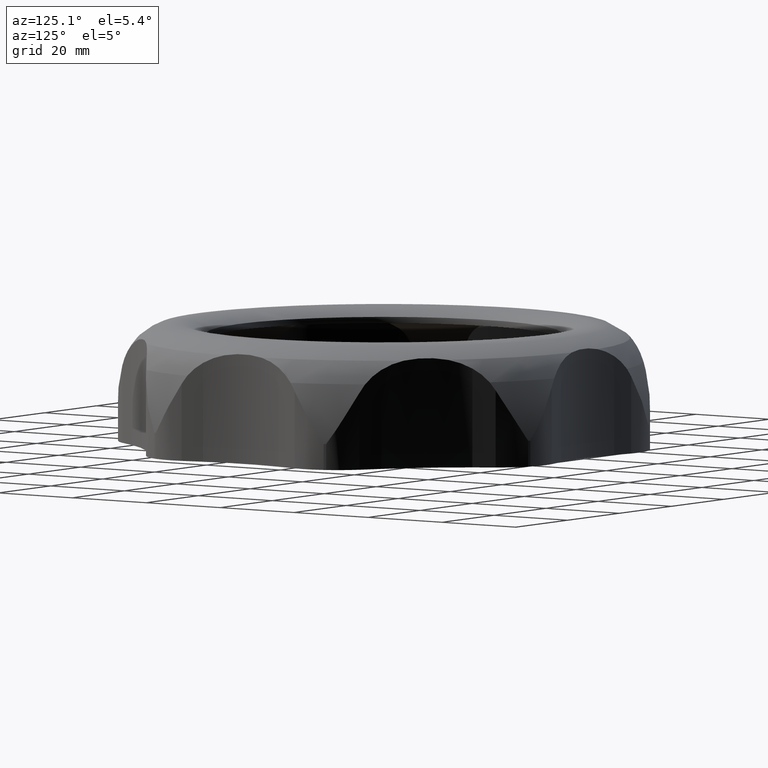
[diagram: clean part render]
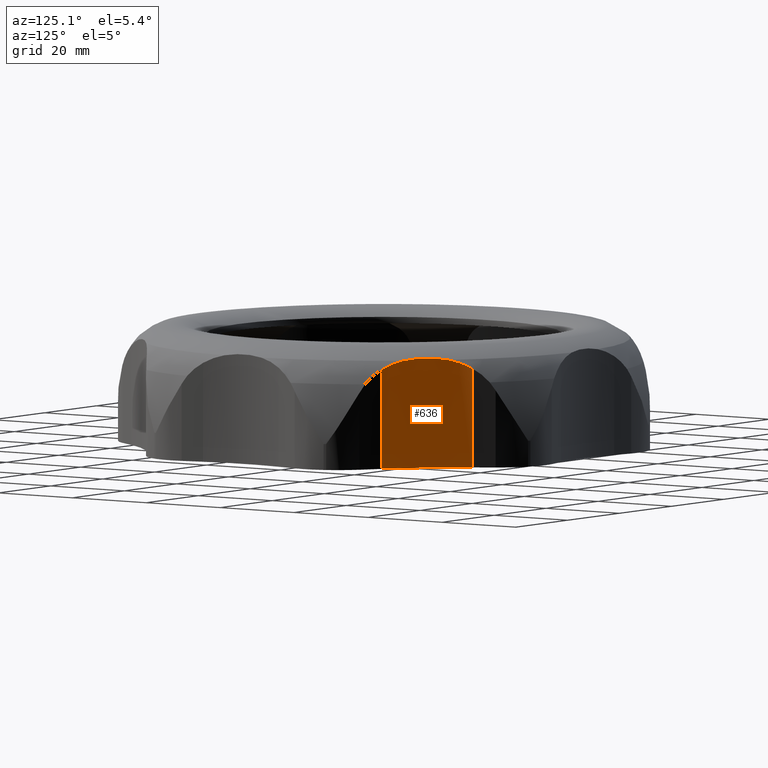
[diagram: same view with one face highlighted and labeled with its STEP entity id]
A machine part, auxiliary view. The second image highlights one B-rep face of the part: STEP entity #636.
In plain terms, the highlighted cylindrical surface (partial cylindrical patch) has radius 49.5 mm, axis along (0, 0, -1).
Its self-contained STEP definition (entity closure, byte-faithful):
#636 = ADVANCED_FACE( '', ( #3509 ), #3510, .F. );
#3509 = FACE_OUTER_BOUND( '', #8233, .T. );
#3510 = CYLINDRICAL_SURFACE( '', #8234, 49.5000000000000 );
#8233 = EDGE_LOOP( '', ( #20145, #20146, #20147, #20148, #20149, #20150 ) );
#8234 = AXIS2_PLACEMENT_3D( '', #20151, #20152, #20153 );
#20145 = ORIENTED_EDGE( '', *, *, #37214, .F. );
#20146 = ORIENTED_EDGE( '', *, *, #32210, .T. );
#20147 = ORIENTED_EDGE( '', *, *, #37215, .T. );
#20148 = ORIENTED_EDGE( '', *, *, #32259, .T. );
#20149 = ORIENTED_EDGE( '', *, *, #32255, .T. );
#20150 = ORIENTED_EDGE( '', *, *, #37213, .T. );
#20151 = CARTESIAN_POINT( '', ( 73.1855523041662, 73.1855517693992, -174.263509895744 ) );
#20152 = DIRECTION( '', ( 0.000000000000000, 0.000000000000000, -1.00000000000000 ) );
#20153 = DIRECTION( '', ( -0.838208748931108, 0.545349514729175, 0.000000000000000 ) );
#32210 = EDGE_CURVE( '', #38990, #38988, #38991, .F. );
#32255 = EDGE_CURVE( '', #39080, #39078, #39081, .T. );
#32259 = EDGE_CURVE( '', #39087, #39080, #39088, .T. );
#37213 = EDGE_CURVE( '', #39078, #48434, #48436, .T. );
#37214 = EDGE_CURVE( '', #38990, #48434, #48437, .T. );
#37215 = EDGE_CURVE( '', #38988, #39087, #48438, .T. );
#38988 = VERTEX_POINT( '', #50238 );
#38990 = VERTEX_POINT( '', #50241 );
#38991 = CIRCLE( '', #50242, 49.5000000000000 );
#39078 = VERTEX_POINT( '', #50394 );
#39080 = VERTEX_POINT( '', #50396 );
#39081 = B_SPLINE_CURVE_WITH_KNOTS( '', 3, ( #50397, #50398, #50399, #50400, #50401, #50402, #50403, #50404, #50405, #50406 ), .UNSPECIFIED., .F., .F., ( 4, 2, 2, 2, 4 ), ( 1.03755640132453E-006, 0.00252258468903733, 0.00504413182167333, 0.00756567895430934, 0.0100872260869453 ), .UNSPECIFIED. );
#39087 = VERTEX_POINT( '', #50421 );
#39088 = B_SPLINE_CURVE_WITH_KNOTS( '', 3, ( #50422, #50423, #50424, #50425, #50426, #50427 ), .UNSPECIFIED., .F., .F., ( 4, 2, 4 ), ( -0.0157093972413115, -0.0128993333692689, -0.0100892694972263 ), .UNSPECIFIED. );
#48434 = VERTEX_POINT( '', #75179 );
#48436 = B_SPLINE_CURVE_WITH_KNOTS( '', 3, ( #75186, #75187, #75188, #75189, #75190, #75191 ), .UNSPECIFIED., .F., .F., ( 4, 2, 4 ), ( 9.82226906137301E-007, 0.00280804691438422, 0.00561511160186231 ), .UNSPECIFIED. );
#48437 = LINE( '', #75192, #75193 );
#48438 = LINE( '', #75194, #75195 );
#50238 = CARTESIAN_POINT( '', ( 31.6942200521599, 46.1907495298264, 0.000261586541951825 ) );
#50241 = CARTESIAN_POINT( '', ( 46.1907513250721, 31.6942186973097, 0.000261586541951825 ) );
#50242 = AXIS2_PLACEMENT_3D( '', #78863, #78864, #78865 );
#50394 = CARTESIAN_POINT( '', ( 41.9273798578985, 34.8035682964285, 23.8905679243228 ) );
#50396 = CARTESIAN_POINT( '', ( 34.8035685836430, 41.9273796271016, 23.8905680812026 ) );
#50397 = CARTESIAN_POINT( '', ( 34.8035685877183, 41.9273796220977, 23.8905679197089 ) );
#50398 = CARTESIAN_POINT( '', ( 35.3323838698996, 41.2780460828862, 24.0524351581985 ) );
#50399 = CARTESIAN_POINT( '', ( 35.8778163129709, 40.6419500039820, 24.1658566324921 ) );
#50400 = CARTESIAN_POINT( '', ( 37.0015221522754, 39.3969569092715, 24.3157692466395 ) );
#50401 = CARTESIAN_POINT( '', ( 37.5797961010758, 38.7880516428774, 24.3521011750728 ) );
#50402 = CARTESIAN_POINT( '', ( 38.7693487947152, 37.5978737650108, 24.3528530133698 ) );
#50403 = CARTESIAN_POINT( '', ( 39.3806232338134, 37.0165985054501, 24.3172996558171 ) );
#50404 = CARTESIAN_POINT( '', ( 40.6369433829647, 35.8820068043961, 24.1668885730963 ) );
#50405 = CARTESIAN_POINT( '', ( 41.2787936159059, 35.3317749904040, 24.0522488750711 ) );
#50406 = CARTESIAN_POINT( '', ( 41.9273798578985, 34.8035682964284, 23.8905679243230 ) );
#50421 = CARTESIAN_POINT( '', ( 31.6942200521727, 46.1907495298074, 21.9737858870486 ) );
#50422 = CARTESIAN_POINT( '', ( 31.6942200521724, 46.1907495298074, 21.9737858870490 ) );
#50423 = CARTESIAN_POINT( '', ( 32.1439683151395, 45.4994810980960, 22.4436530515074 ) );
#50424 = CARTESIAN_POINT( '', ( 32.6285460116443, 44.7926623947188, 22.8245210050163 ) );
#50425 = CARTESIAN_POINT( '', ( 33.6651073941389, 43.3667429305472, 23.4528223135742 ) );
#50426 = CARTESIAN_POINT( '', ( 34.2171336616087, 42.6474644589403, 23.6998011140335 ) );
#50427 = CARTESIAN_POINT( '', ( 34.8035685836431, 41.9273796271017, 23.8905680812027 ) );
#75179 = CARTESIAN_POINT( '', ( 46.1907513250721, 31.6942186973097, 21.9737848241914 ) );
#75186 = CARTESIAN_POINT( '', ( 41.9273799007043, 34.8035682615676, 23.8905680760915 ) );
#75187 = CARTESIAN_POINT( '', ( 42.6466405089280, 34.2178045766271, 23.7000194624847 ) );
#75188 = CARTESIAN_POINT( '', ( 43.3654665266754, 33.6660704887516, 23.4532988331085 ) );
#75189 = CARTESIAN_POINT( '', ( 44.7913432135865, 32.6294695302478, 22.8251882322092 ) );
#75190 = CARTESIAN_POINT( '', ( 45.4985737516912, 32.1445584297817, 22.4442701032777 ) );
#75191 = CARTESIAN_POINT( '', ( 46.1907513250720, 31.6942186973094, 21.9737848241914 ) );
#75192 = CARTESIAN_POINT( '', ( 46.1907513250721, 31.6942186973097, -174.263509895744 ) );
#75193 = VECTOR( '', #79663, 1000.00000000000 );
#75194 = CARTESIAN_POINT( '', ( 31.6942200521599, 46.1907495298264, -174.263509895744 ) );
#75195 = VECTOR( '', #79664, 1000.00000000000 );
#78863 = CARTESIAN_POINT( '', ( 73.1855523041662, 73.1855517693992, 0.000261586541951825 ) );
#78864 = DIRECTION( '', ( 2.34318281388423E-017, -5.65694372839885E-017, 1.00000000000000 ) );
#78865 = DIRECTION( '', ( 0.382683432365090, -0.923879532511287, -6.12303176911189E-017 ) );
#79663 = DIRECTION( '', ( 0.000000000000000, 0.000000000000000, 1.00000000000000 ) );
#79664 = DIRECTION( '', ( 0.000000000000000, 0.000000000000000, 1.00000000000000 ) );